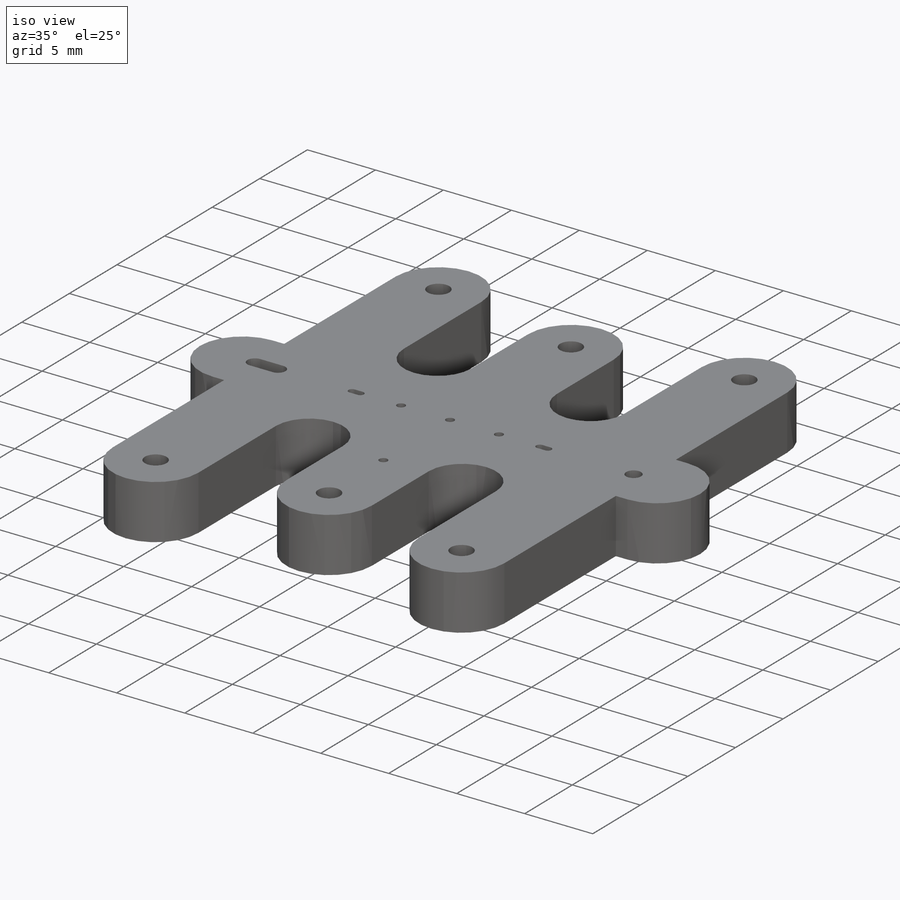
[diagram: iso view]
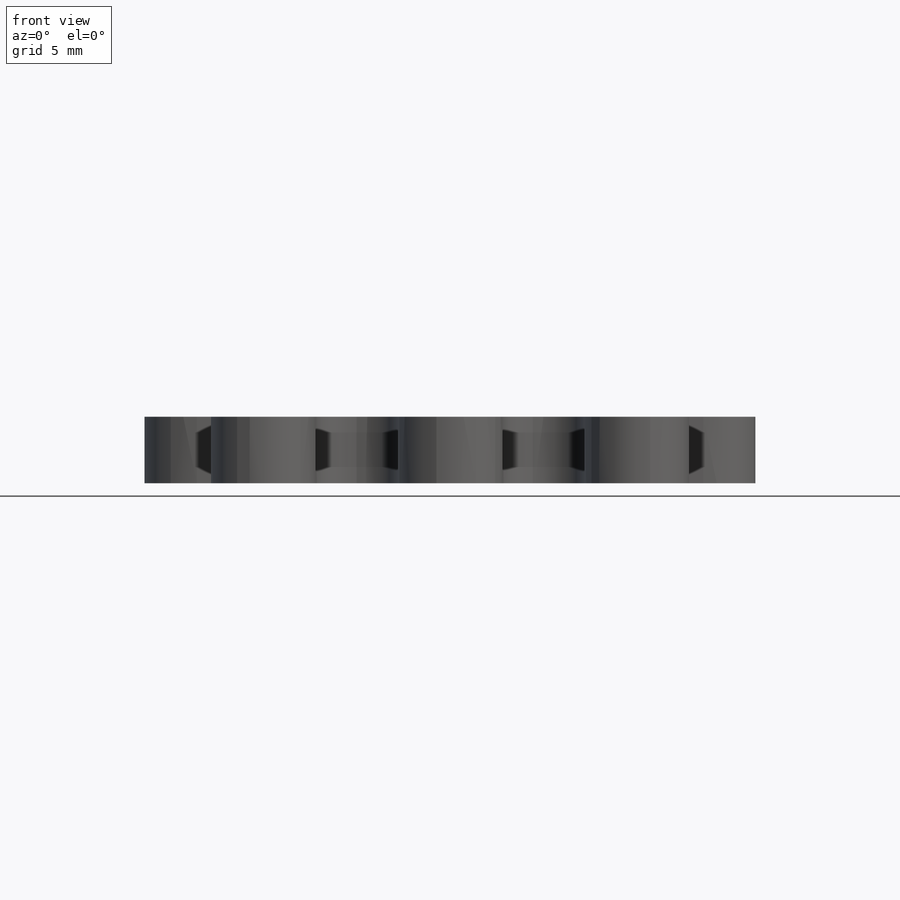
[diagram: front view]
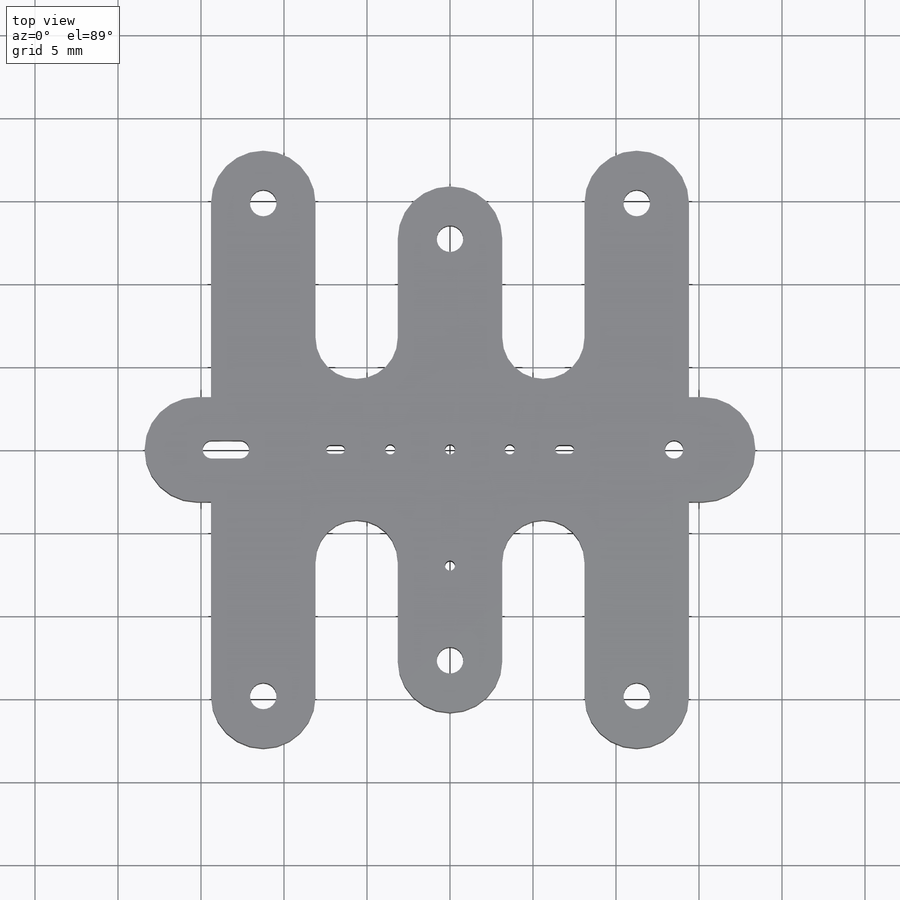
[diagram: top view]
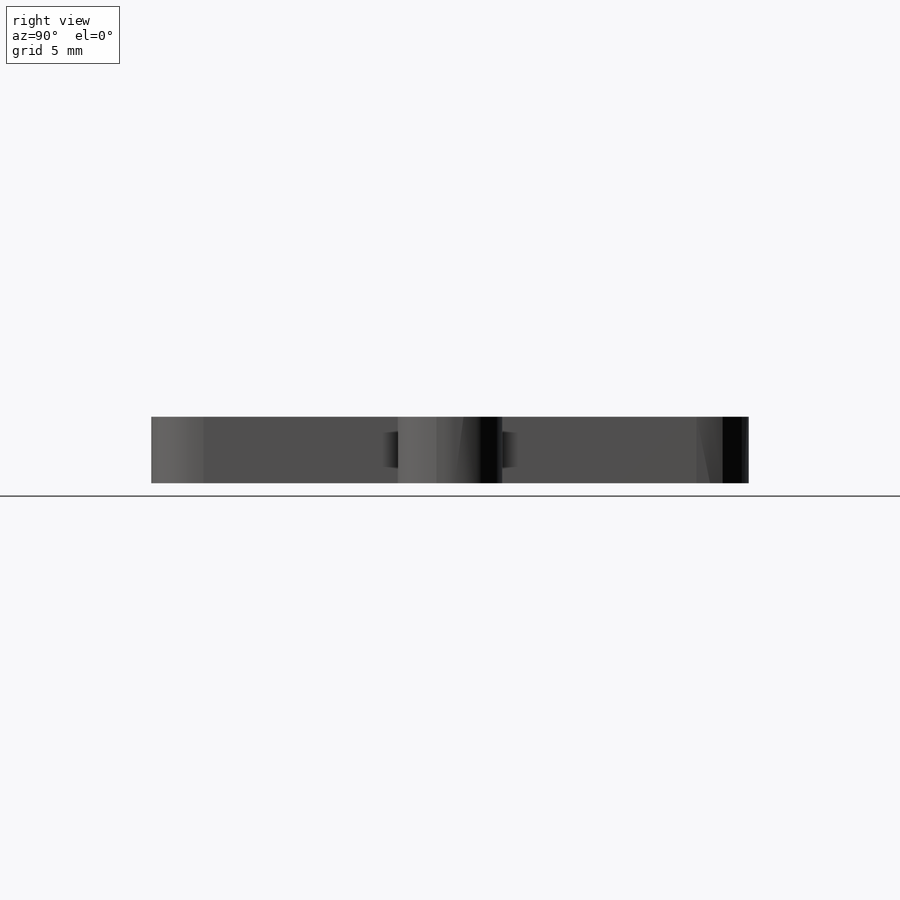
[diagram: right view]
SOLIDWORKS PART (.sldprt)
format: sldprt  version: not decoded by parser v0  size: 279,040 bytes
history: native  units: mm
features: sketch x3, cut_extrude x2, material x1, extrude x1 (+12 scaffold rows collapsed)
feature tree (19):
  scaffold x12  (default folders/planes/origin — collapsed)
  material  "Ceramic Porcelain"
  sketch  "Sketch1"  dims[c1.D3=6.3mm c1.D1=4.95mm c1.D2=6.3mm c1.D12=1.6mm c2.D1=29.0mm c2.D2=14.5mm c2.D4=29.7mm c2.D5=14.85mm c2.D6=22.5mm c2.D7=11.25mm c2.D8=~26.075783mm c3.D1=~31.979733mm c3.D2=13.15mm c3.D8=6.575mm c3.D9=25.4mm c3.D10=12.7mm c3.D11=11.25mm c3.D12=5.625mm c4.D1=12.7mm c4.D3=30.5mm c4.D8=15.25mm c4.D10=13.45mm c4.D11=6.725mm]
  extrude  "Extrude9"  Depth=4mm
  sketch  "Sketch2"  dims[D2=1.1mm D1=1.1mm D3=13.5mm D4=1.7mm D5=13.5mm]
  cut_extrude  "Extrude10"  [1 undecoded]
  sketch  "Sketch3"  dims[c1.D2=0.6mm c1.D1=0.6mm c2.D2=0.6mm c2.D3=14.4mm c2.D4=7.2mm c2.D5=3.0mm c2.D6=3.0mm c2.D7=7.0mm]
  cut_extrude  "Extrude11"  Depth=10mm
decode coverage: 5 of 6 modeling features carry decoded parameters
note: ~ marks probable driven/reference dimensions
note: 1 parameter value undecoded
note: suppression state not decoded; provenance and decode notes live in map.json
